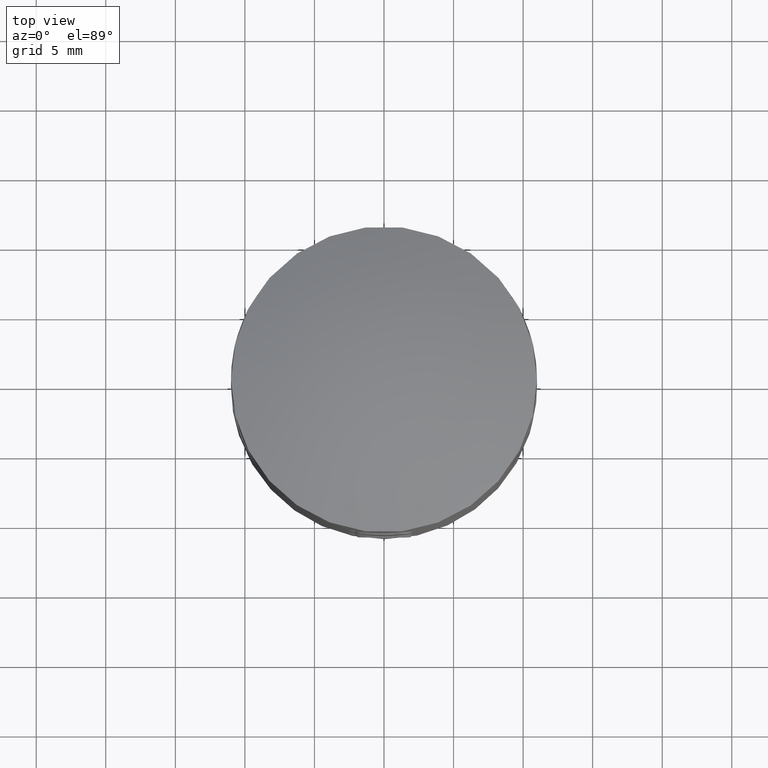
[diagram: clean part render]
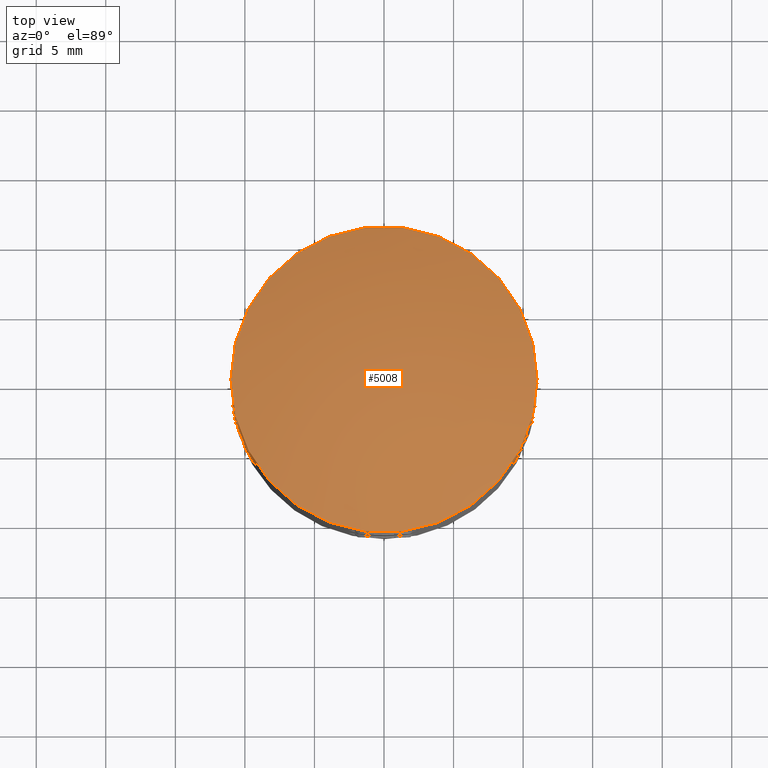
[diagram: same view with one face highlighted and labeled with its STEP entity id]
A machine part, top view. The second image highlights one B-rep face of the part: STEP entity #5008.
In plain terms, the highlighted spherical surface has radius 28 mm.
Its self-contained STEP definition (entity closure, byte-faithful):
#18 = DIRECTION ( 'NONE',  ( -1.000000000000000000, 0.0000000000000000000, 0.0000000000000000000 ) ) ;
#495 = ORIENTED_EDGE ( 'NONE', *, *, #3239, .T. ) ;
#2080 = SPHERICAL_SURFACE ( 'NONE', #6213, 28.00000000000000400 ) ;
#3190 = CIRCLE ( 'NONE', #8854, 10.99999999999999600 ) ;
#3239 = EDGE_CURVE ( 'NONE', #19578, #19578, #3190, .T. ) ;
#5008 = ADVANCED_FACE ( 'NONE', ( #22489 ), #2080, .T. ) ;
#6213 = AXIS2_PLACEMENT_3D ( 'NONE', #10407, #18, #17467 ) ;
#7508 = CARTESIAN_POINT ( 'NONE',  ( 0.0000000000000000000, 0.0000000000000000000, 23.74878637916747000 ) ) ;
#7558 = EDGE_LOOP ( 'NONE', ( #495 ) ) ;
#8854 = AXIS2_PLACEMENT_3D ( 'NONE', #7508, #17974, #17911 ) ;
#10407 = CARTESIAN_POINT ( 'NONE',  ( 0.0000000000000000000, 0.0000000000000000000, -2.000000000000008900 ) ) ;
#11845 = CARTESIAN_POINT ( 'NONE',  ( 10.99999999999999600, 0.0000000000000000000, 23.74878637916747000 ) ) ;
#17467 = DIRECTION ( 'NONE',  ( 0.0000000000000000000, 1.000000000000000000, 0.0000000000000000000 ) ) ;
#17911 = DIRECTION ( 'NONE',  ( 1.000000000000000000, 0.0000000000000000000, 0.0000000000000000000 ) ) ;
#17974 = DIRECTION ( 'NONE',  ( -0.0000000000000000000, -0.0000000000000000000, 1.000000000000000000 ) ) ;
#19578 = VERTEX_POINT ( 'NONE', #11845 ) ;
#22489 = FACE_OUTER_BOUND ( 'NONE', #7558, .T. ) ;